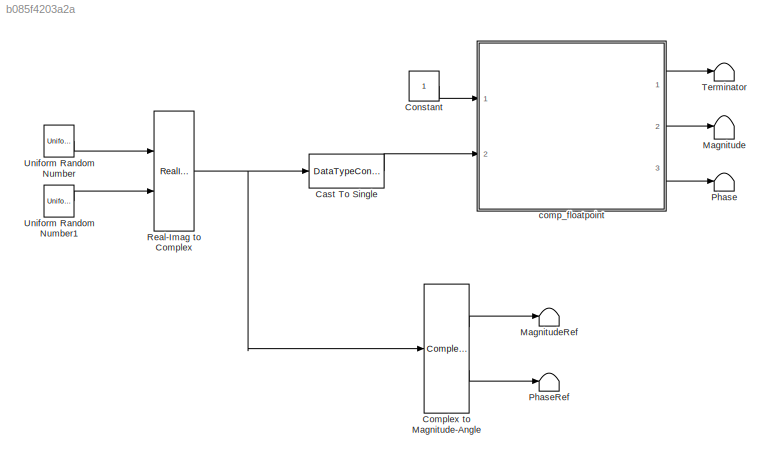
MODEL slx_b085f4203a2a
KIND model
CONFIG AbsTol = auto
CONFIG EnableMultiTasking = off
CONFIG FixedStep = auto
CONFIG MaxStep = auto
CONFIG MinStep = auto
CONFIG RelTol = 1e-3
CONFIG SampleTimeConstraint = Unconstrained
CONFIG SolverName = VariableStepAuto
CONFIG StartTime = 0.0
CONFIG StopTime = 10.0
BLOCK [DataTypeConversion] Cast To Single
  OutDataTypeStr = single
  RndMeth = Floor
  SaturateOnIntegerOverflow = off
BLOCK [ComplexToMagnitudeAngle] Complex to Magnitude-Angle
  Ports = [1, 2]
BLOCK [Constant] Constant
  OutDataTypeStr = boolean
  SampleTime = 1
BLOCK [Terminator] Magnitude
BLOCK [Terminator] MagnitudeRef
BLOCK [Terminator] Phase
BLOCK [Terminator] PhaseRef
BLOCK [RealImagToComplex] Real-Imag to Complex
  Ports = [2, 1]
BLOCK [Terminator] Terminator
BLOCK [UniformRandomNumber] Uniform Random Number
  Maximum = 1023.99999976158142089844
  Minimum = 0
  SampleTime = 1
  Seed = 10
BLOCK [UniformRandomNumber] Uniform Random Number1
  Maximum = 1023.999999761581420898441
  Minimum = 0
  SampleTime = 1
  Seed = 11
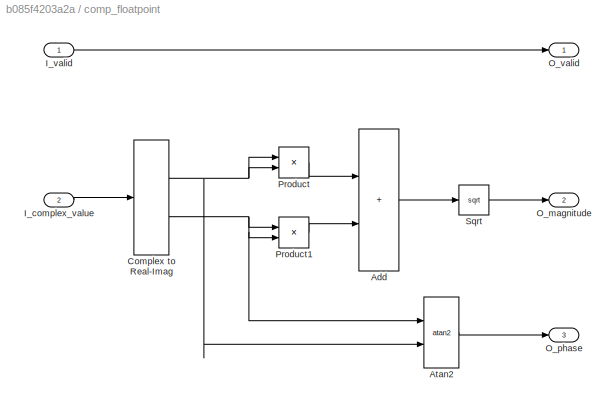
BLOCK [SubSystem] comp_floatpoint
  Ports = [2, 3]
  RequestExecContextInheritance = off
BLOCK [Sum] comp_floatpoint/Add
  IconShape = rectangular
  Ports = [2, 1]
BLOCK [Trigonometry] comp_floatpoint/Atan2
  Operator = atan2
  Ports = [2, 1]
BLOCK [ComplexToRealImag] comp_floatpoint/Complex to Real-Imag
  Ports = [1, 2]
BLOCK [Inport] comp_floatpoint/I_complex_value
  Port = 2
BLOCK [Inport] comp_floatpoint/I_valid
BLOCK [Outport] comp_floatpoint/O_magnitude
  Port = 2
BLOCK [Outport] comp_floatpoint/O_phase
  Port = 3
BLOCK [Outport] comp_floatpoint/O_valid
BLOCK [Product] comp_floatpoint/Product
  Ports = [2, 1]
BLOCK [Product] comp_floatpoint/Product1
  Ports = [2, 1]
BLOCK [Sqrt] comp_floatpoint/Sqrt
LINE Cast To Single:1 -> comp_floatpoint:2
LINE Complex to Magnitude-Angle:1 -> MagnitudeRef:1
LINE Complex to Magnitude-Angle:2 -> PhaseRef:1
LINE Constant:1 -> comp_floatpoint:1
NET Real-Imag to Complex:1 -> Cast To Single:1, Complex to Magnitude-Angle:1
LINE Uniform Random Number1:1 -> Real-Imag to Complex:2
LINE Uniform Random Number:1 -> Real-Imag to Complex:1
LINE comp_floatpoint/Add:1 -> comp_floatpoint/Sqrt:1
LINE comp_floatpoint/Atan2:1 -> comp_floatpoint/O_phase:1
NET comp_floatpoint/Complex to Real-Imag:1 -> comp_floatpoint/Atan2:2, comp_floatpoint/Product:1, comp_floatpoint/Product:2
NET comp_floatpoint/Complex to Real-Imag:2 -> comp_floatpoint/Atan2:1, comp_floatpoint/Product1:1, comp_floatpoint/Product1:2
LINE comp_floatpoint/I_complex_value:1 -> comp_floatpoint/Complex to Real-Imag:1
LINE comp_floatpoint/I_valid:1 -> comp_floatpoint/O_valid:1
LINE comp_floatpoint/Product1:1 -> comp_floatpoint/Add:2
LINE comp_floatpoint/Product:1 -> comp_floatpoint/Add:1
LINE comp_floatpoint/Sqrt:1 -> comp_floatpoint/O_magnitude:1
LINE comp_floatpoint:1 -> Terminator:1
LINE comp_floatpoint:2 -> Magnitude:1
LINE comp_floatpoint:3 -> Phase:1
note: NET lines group one-source signal fan-out (src -> all destinations, sorted); 1:1 wires keep LINE
